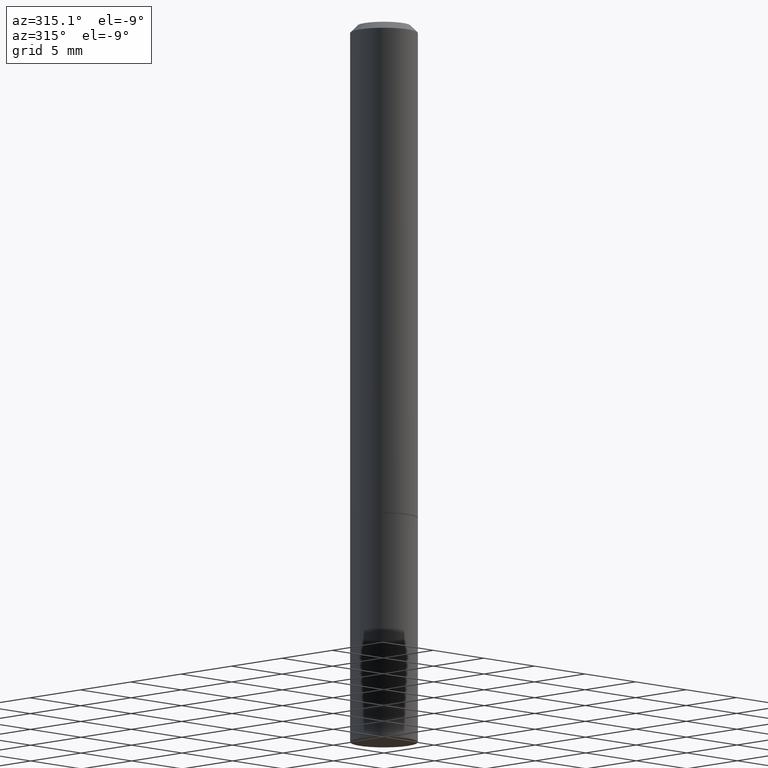
[diagram: clean part render]
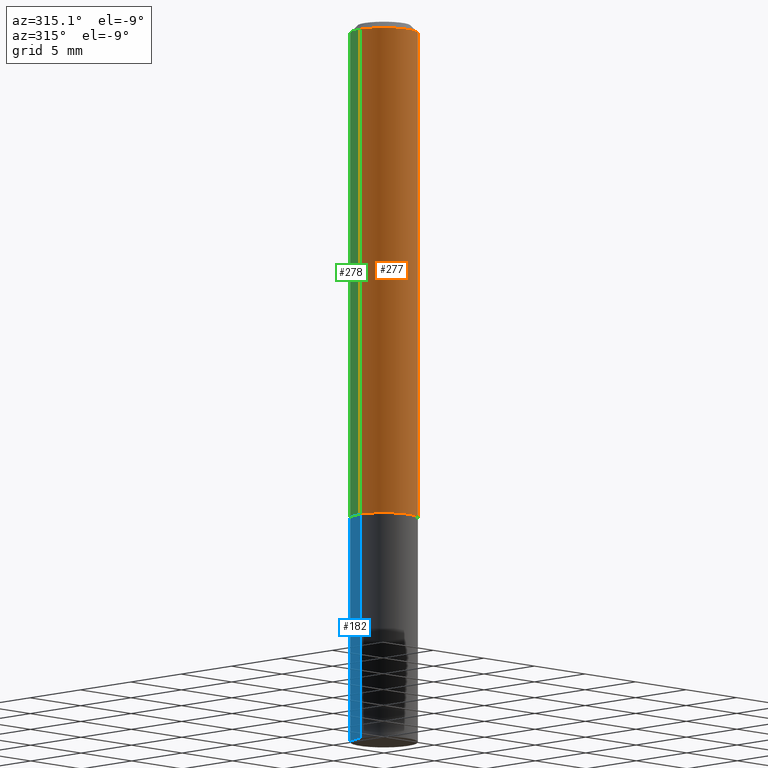
[diagram: same view with three faces highlighted in distinct colors, each labeled with its STEP entity id]
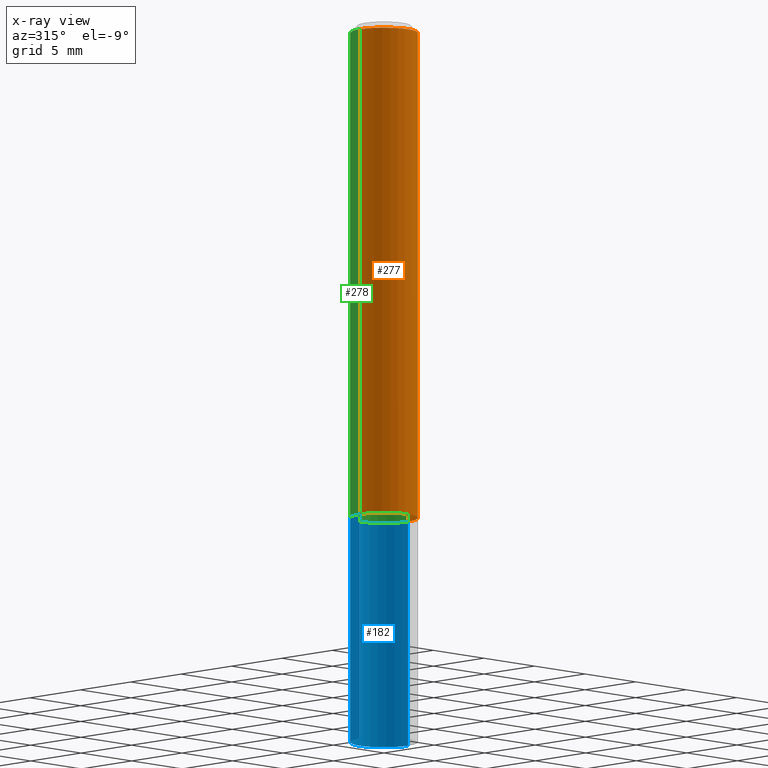
[diagram: x-ray of the same camera — body ghosted, the three highlighted faces saturated]
A machine part, auxiliary view with three faces highlighted in distinct colors.
The next image is the same camera in x-ray (body ghosted, the three faces saturated) — at least one of them is partly hidden behind the body in this view.
Their STEP definitions:

[orange] entity #277 — the highlighted cylindrical surface (edge-blend (fillet) strip) has radius 2.3812 mm, axis along (-0, 0, 1).
#3 = CIRCLE ( 'NONE', #46, 0.09375000000000001388 ) ;
#20 = ORIENTED_EDGE ( 'NONE', *, *, #376, .F. ) ;
#23 = VECTOR ( 'NONE', #204, 39.37007874015748143 ) ;
#32 = EDGE_CURVE ( 'NONE', #120, #381, #386, .T. ) ;
#46 = AXIS2_PLACEMENT_3D ( 'NONE', #307, #117, #216 ) ;
#47 = DIRECTION ( 'NONE',  ( -2.445468806185136597E-29, 3.491481338843145583E-15, 1.000000000000000000 ) ) ;
#56 = CARTESIAN_POINT ( 'NONE',  ( 0.09375000000000001388, -5.451948110603568638E-15, -1.373999999999999888 ) ) ;
#57 = DIRECTION ( 'NONE',  ( -2.445468806185136877E-29, 3.491481338843145188E-15, 1.000000000000000000 ) ) ;
#59 = AXIS2_PLACEMENT_3D ( 'NONE', #260, #132, #368 ) ;
#73 = LINE ( 'NONE', #181, #23 ) ;
#99 = CYLINDRICAL_SURFACE ( 'NONE', #59, 0.09374999999999991673 ) ;
#111 = CARTESIAN_POINT ( 'NONE',  ( -0.09374999999999984734, 5.848231242562234171E-16, -0.02000000000000002123 ) ) ;
#115 = EDGE_CURVE ( 'NONE', #353, #120, #3, .T. ) ;
#117 = DIRECTION ( 'NONE',  ( -2.445468806185136597E-29, 3.491481338843145583E-15, 1.000000000000000000 ) ) ;
#120 = VERTEX_POINT ( 'NONE', #56 ) ;
#132 = DIRECTION ( 'NONE',  ( -2.445468806185136597E-29, 3.491481338843145583E-15, 1.000000000000000000 ) ) ;
#147 = AXIS2_PLACEMENT_3D ( 'NONE', #377, #47, #375 ) ;
#164 = ORIENTED_EDGE ( 'NONE', *, *, #32, .T. ) ;
#180 = ORIENTED_EDGE ( 'NONE', *, *, #115, .T. ) ;
#181 = CARTESIAN_POINT ( 'NONE',  ( -0.09374999999999991673, 6.661338147750933326E-16, -4.611501647113969791E-30 ) ) ;
#189 = ORIENTED_EDGE ( 'NONE', *, *, #354, .F. ) ;
#203 = EDGE_LOOP ( 'NONE', ( #189, #180, #164, #20 ) ) ;
#204 = DIRECTION ( 'NONE',  ( -2.445468806185136877E-29, 3.491481338843145188E-15, 1.000000000000000000 ) ) ;
#216 = DIRECTION ( 'NONE',  ( 1.000000000000000000, -6.982962677686261189E-15, 0.000000000000000000 ) ) ;
#255 = FACE_OUTER_BOUND ( 'NONE', #203, .T. ) ;
#260 = CARTESIAN_POINT ( 'NONE',  ( 0.000000000000000000, 0.000000000000000000, 0.000000000000000000 ) ) ;
#277 = ADVANCED_FACE ( 'NONE', ( #255 ), #99, .T. ) ;
#279 = CIRCLE ( 'NONE', #147, 0.09374999999999984734 ) ;
#290 = CARTESIAN_POINT ( 'NONE',  ( -0.09375000000000001388, -1.767428678398575728E-15, -1.373999999999999888 ) ) ;
#307 = CARTESIAN_POINT ( 'NONE',  ( 3.360074139698377778E-29, -4.797295359570481134E-15, -1.373999999999999888 ) ) ;
#336 = VECTOR ( 'NONE', #57, 39.37007874015748143 ) ;
#353 = VERTEX_POINT ( 'NONE', #290 ) ;
#354 = EDGE_CURVE ( 'NONE', #353, #388, #73, .T. ) ;
#358 = CARTESIAN_POINT ( 'NONE',  ( 0.09374999999999991673, -6.546527510330869125E-16, 4.571415727308685602E-30 ) ) ;
#368 = DIRECTION ( 'NONE',  ( 1.000000000000000000, -6.982962677686266711E-15, 4.876176775795935793E-29 ) ) ;
#373 = CARTESIAN_POINT ( 'NONE',  ( 0.09374999999999984734, -7.130013140679430017E-16, -0.02000000000000002123 ) ) ;
#375 = DIRECTION ( 'NONE',  ( 1.000000000000000000, -6.982962677686266711E-15, 0.000000000000000000 ) ) ;
#376 = EDGE_CURVE ( 'NONE', #388, #381, #279, .T. ) ;
#377 = CARTESIAN_POINT ( 'NONE',  ( 4.890937612370278413E-31, -6.982962677686297772E-17, -0.02000000000000002123 ) ) ;
#381 = VERTEX_POINT ( 'NONE', #373 ) ;
#386 = LINE ( 'NONE', #358, #336 ) ;
#388 = VERTEX_POINT ( 'NONE', #111 ) ;

[blue] entity #182 — the highlighted cylindrical surface (edge-blend (fillet) strip) has radius 2.3813 mm, axis along (-0, 0, 1).
#8 = DIRECTION ( 'NONE',  ( 1.000000000000000000, -6.982962677686265922E-15, 4.876176775795935793E-29 ) ) ;
#33 = CYLINDRICAL_SURFACE ( 'NONE', #40, 0.09375000000000001388 ) ;
#40 = AXIS2_PLACEMENT_3D ( 'NONE', #194, #257, #8 ) ;
#42 = CARTESIAN_POINT ( 'NONE',  ( -0.09375000000000001388, -5.225740944522714123E-15, -1.375000000000000000 ) ) ;
#44 = LINE ( 'NONE', #323, #184 ) ;
#63 = CARTESIAN_POINT ( 'NONE',  ( -0.09374999999999984734, -6.328309926653205239E-15, -2.000000000000000000 ) ) ;
#68 = AXIS2_PLACEMENT_3D ( 'NONE', #348, #143, #288 ) ;
#93 = VECTOR ( 'NONE', #167, 39.37007874015748143 ) ;
#96 = CARTESIAN_POINT ( 'NONE',  ( 0.09375000000000001388, -6.546527510330875041E-16, 4.571415727308690506E-30 ) ) ;
#114 = EDGE_LOOP ( 'NONE', ( #292, #351, #245, #263 ) ) ;
#130 = LINE ( 'NONE', #96, #93 ) ;
#138 = CIRCLE ( 'NONE', #68, 0.09375000000000001388 ) ;
#142 = VERTEX_POINT ( 'NONE', #229 ) ;
#143 = DIRECTION ( 'NONE',  ( -2.445468806185136597E-29, 3.491481338843145583E-15, 1.000000000000000000 ) ) ;
#152 = VERTEX_POINT ( 'NONE', #364 ) ;
#167 = DIRECTION ( 'NONE',  ( -2.445468806185136877E-29, 3.491481338843145188E-15, 1.000000000000000000 ) ) ;
#182 = ADVANCED_FACE ( 'NONE', ( #259 ), #33, .T. ) ;
#184 = VECTOR ( 'NONE', #370, 39.37007874015748143 ) ;
#186 = EDGE_CURVE ( 'NONE', #152, #142, #130, .T. ) ;
#194 = CARTESIAN_POINT ( 'NONE',  ( 0.000000000000000000, 0.000000000000000000, 0.000000000000000000 ) ) ;
#229 = CARTESIAN_POINT ( 'NONE',  ( 0.09375000000000001388, -5.455439591942412434E-15, -1.375000000000000000 ) ) ;
#245 = ORIENTED_EDGE ( 'NONE', *, *, #297, .F. ) ;
#257 = DIRECTION ( 'NONE',  ( -2.445468806185136597E-29, 3.491481338843145583E-15, 1.000000000000000000 ) ) ;
#259 = FACE_OUTER_BOUND ( 'NONE', #114, .T. ) ;
#263 = ORIENTED_EDGE ( 'NONE', *, *, #186, .F. ) ;
#269 = AXIS2_PLACEMENT_3D ( 'NONE', #367, #343, #285 ) ;
#276 = VERTEX_POINT ( 'NONE', #63 ) ;
#280 = EDGE_CURVE ( 'NONE', #152, #276, #378, .T. ) ;
#285 = DIRECTION ( 'NONE',  ( 1.000000000000000000, -6.982962677686261189E-15, 0.000000000000000000 ) ) ;
#288 = DIRECTION ( 'NONE',  ( 1.000000000000000000, -6.982962677686261189E-15, 0.000000000000000000 ) ) ;
#292 = ORIENTED_EDGE ( 'NONE', *, *, #280, .T. ) ;
#297 = EDGE_CURVE ( 'NONE', #142, #390, #138, .T. ) ;
#323 = CARTESIAN_POINT ( 'NONE',  ( -0.09375000000000001388, 6.661338147750940229E-16, -4.611501647113973995E-30 ) ) ;
#338 = EDGE_CURVE ( 'NONE', #276, #390, #44, .T. ) ;
#343 = DIRECTION ( 'NONE',  ( -2.445468806185136597E-29, 3.491481338843145583E-15, 1.000000000000000000 ) ) ;
#348 = CARTESIAN_POINT ( 'NONE',  ( 3.362519608504562260E-29, -4.800786840909324930E-15, -1.375000000000000000 ) ) ;
#351 = ORIENTED_EDGE ( 'NONE', *, *, #338, .T. ) ;
#364 = CARTESIAN_POINT ( 'NONE',  ( 0.09374999999999984734, -7.626134364977371460E-15, -2.000000000000000000 ) ) ;
#367 = CARTESIAN_POINT ( 'NONE',  ( 4.890937612370273194E-29, -6.982962677686291165E-15, -2.000000000000000000 ) ) ;
#370 = DIRECTION ( 'NONE',  ( -2.445468806185136877E-29, 3.491481338843145188E-15, 1.000000000000000000 ) ) ;
#378 = CIRCLE ( 'NONE', #269, 0.09375000000000001388 ) ;
#390 = VERTEX_POINT ( 'NONE', #42 ) ;

[green] entity #278 — the highlighted cylindrical surface (edge-blend (fillet) strip) has radius 2.3812 mm, axis along (-0, 0, 1).
#6 = CYLINDRICAL_SURFACE ( 'NONE', #172, 0.09374999999999991673 ) ;
#9 = AXIS2_PLACEMENT_3D ( 'NONE', #129, #366, #62 ) ;
#23 = VECTOR ( 'NONE', #204, 39.37007874015748143 ) ;
#32 = EDGE_CURVE ( 'NONE', #120, #381, #386, .T. ) ;
#36 = DIRECTION ( 'NONE',  ( -2.445468806185136597E-29, 3.491481338843145583E-15, 1.000000000000000000 ) ) ;
#41 = DIRECTION ( 'NONE',  ( -2.445468806185136597E-29, 3.491481338843145583E-15, 1.000000000000000000 ) ) ;
#56 = CARTESIAN_POINT ( 'NONE',  ( 0.09375000000000001388, -5.451948110603568638E-15, -1.373999999999999888 ) ) ;
#57 = DIRECTION ( 'NONE',  ( -2.445468806185136877E-29, 3.491481338843145188E-15, 1.000000000000000000 ) ) ;
#62 = DIRECTION ( 'NONE',  ( 1.000000000000000000, -6.982962677686261189E-15, 0.000000000000000000 ) ) ;
#64 = DIRECTION ( 'NONE',  ( 1.000000000000000000, -6.982962677686266711E-15, 0.000000000000000000 ) ) ;
#67 = AXIS2_PLACEMENT_3D ( 'NONE', #199, #41, #64 ) ;
#73 = LINE ( 'NONE', #181, #23 ) ;
#77 = EDGE_LOOP ( 'NONE', ( #294, #83, #374, #92 ) ) ;
#83 = ORIENTED_EDGE ( 'NONE', *, *, #354, .T. ) ;
#92 = ORIENTED_EDGE ( 'NONE', *, *, #32, .F. ) ;
#111 = CARTESIAN_POINT ( 'NONE',  ( -0.09374999999999984734, 5.848231242562234171E-16, -0.02000000000000002123 ) ) ;
#120 = VERTEX_POINT ( 'NONE', #56 ) ;
#129 = CARTESIAN_POINT ( 'NONE',  ( 3.360074139698377778E-29, -4.797295359570481134E-15, -1.373999999999999888 ) ) ;
#172 = AXIS2_PLACEMENT_3D ( 'NONE', #198, #36, #311 ) ;
#181 = CARTESIAN_POINT ( 'NONE',  ( -0.09374999999999991673, 6.661338147750933326E-16, -4.611501647113969791E-30 ) ) ;
#183 = CIRCLE ( 'NONE', #9, 0.09375000000000001388 ) ;
#195 = FACE_OUTER_BOUND ( 'NONE', #77, .T. ) ;
#198 = CARTESIAN_POINT ( 'NONE',  ( 0.000000000000000000, 0.000000000000000000, 0.000000000000000000 ) ) ;
#199 = CARTESIAN_POINT ( 'NONE',  ( 4.890937612370278413E-31, -6.982962677686297772E-17, -0.02000000000000002123 ) ) ;
#204 = DIRECTION ( 'NONE',  ( -2.445468806185136877E-29, 3.491481338843145188E-15, 1.000000000000000000 ) ) ;
#223 = EDGE_CURVE ( 'NONE', #381, #388, #350, .T. ) ;
#266 = EDGE_CURVE ( 'NONE', #120, #353, #183, .T. ) ;
#278 = ADVANCED_FACE ( 'NONE', ( #195 ), #6, .T. ) ;
#290 = CARTESIAN_POINT ( 'NONE',  ( -0.09375000000000001388, -1.767428678398575728E-15, -1.373999999999999888 ) ) ;
#294 = ORIENTED_EDGE ( 'NONE', *, *, #266, .T. ) ;
#311 = DIRECTION ( 'NONE',  ( 1.000000000000000000, -6.982962677686266711E-15, 4.876176775795935793E-29 ) ) ;
#336 = VECTOR ( 'NONE', #57, 39.37007874015748143 ) ;
#350 = CIRCLE ( 'NONE', #67, 0.09374999999999984734 ) ;
#353 = VERTEX_POINT ( 'NONE', #290 ) ;
#354 = EDGE_CURVE ( 'NONE', #353, #388, #73, .T. ) ;
#358 = CARTESIAN_POINT ( 'NONE',  ( 0.09374999999999991673, -6.546527510330869125E-16, 4.571415727308685602E-30 ) ) ;
#366 = DIRECTION ( 'NONE',  ( -2.445468806185136597E-29, 3.491481338843145583E-15, 1.000000000000000000 ) ) ;
#373 = CARTESIAN_POINT ( 'NONE',  ( 0.09374999999999984734, -7.130013140679430017E-16, -0.02000000000000002123 ) ) ;
#374 = ORIENTED_EDGE ( 'NONE', *, *, #223, .F. ) ;
#381 = VERTEX_POINT ( 'NONE', #373 ) ;
#386 = LINE ( 'NONE', #358, #336 ) ;
#388 = VERTEX_POINT ( 'NONE', #111 ) ;